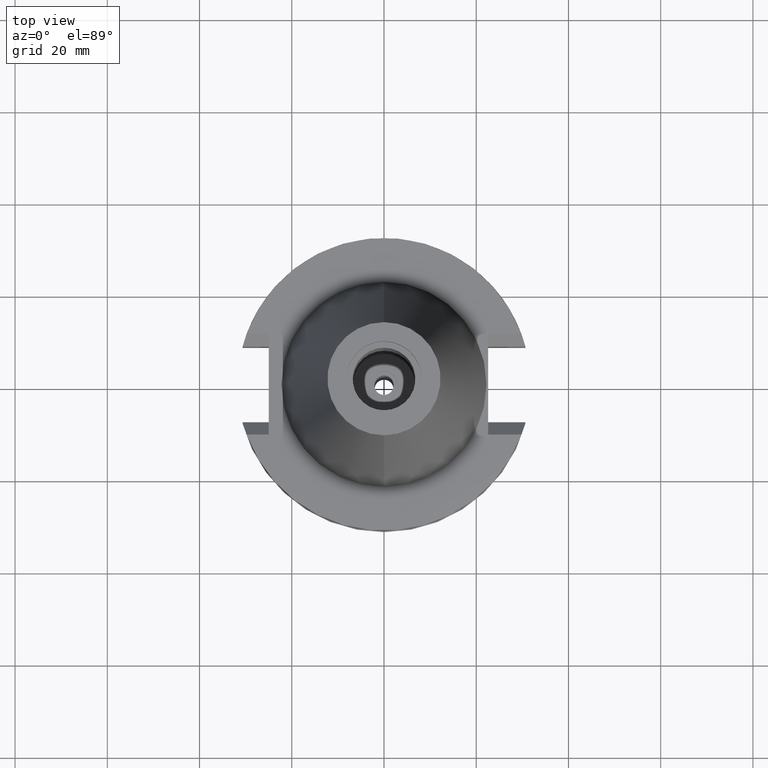
[diagram: clean part render]
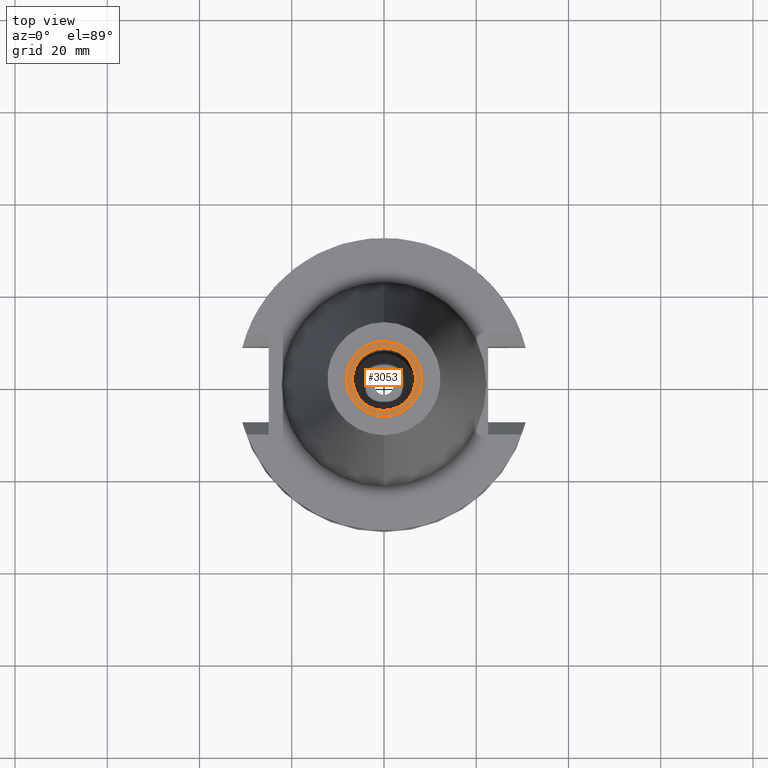
[diagram: same view with one face highlighted and labeled with its STEP entity id]
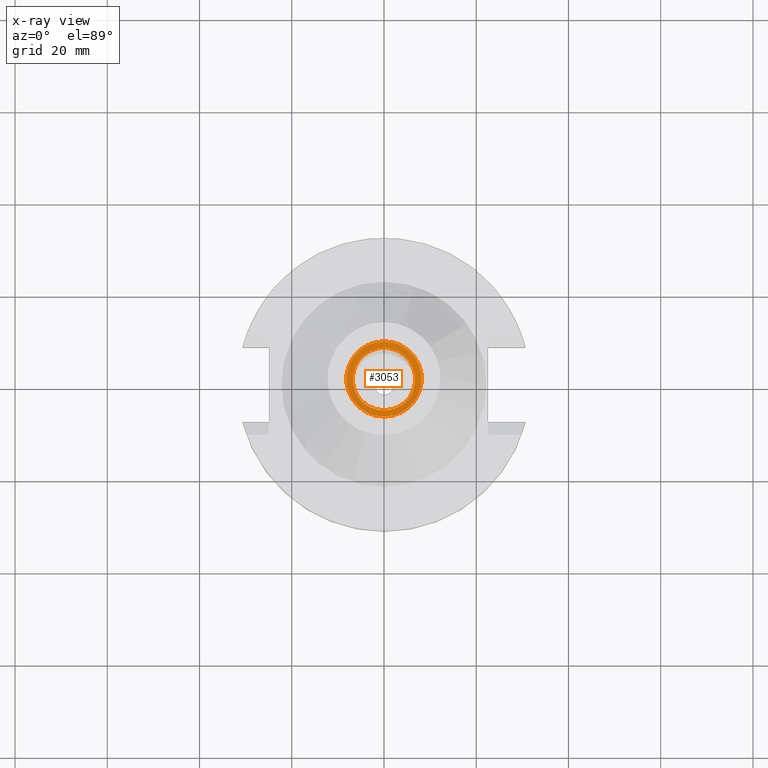
[diagram: x-ray of the same camera — body ghosted, the highlighted face saturated]
A machine part, top view. The second image highlights one B-rep face of the part: STEP entity #3053.
The next image is the same camera in x-ray: the body ghosted, the highlighted face saturated — about 0% of this face is hidden behind the body in this view.
In plain terms, the highlighted planar face has unit normal (0, 0, -1).
Its self-contained STEP definition (entity closure, byte-faithful):
#93 = CARTESIAN_POINT ( 'NONE',  ( 0.0000000000000000000, -6.799999999999999822, 63.46999999999999886 ) ) ;
#97 = VERTEX_POINT ( 'NONE', #2136 ) ;
#184 = DIRECTION ( 'NONE',  ( 0.0000000000000000000, 0.0000000000000000000, 1.000000000000000000 ) ) ;
#262 = DIRECTION ( 'NONE',  ( 0.0000000000000000000, 1.000000000000000000, 0.0000000000000000000 ) ) ;
#313 = DIRECTION ( 'NONE',  ( 0.0000000000000000000, -1.000000000000000000, 0.0000000000000000000 ) ) ;
#474 = CARTESIAN_POINT ( 'NONE',  ( 0.0000000000000000000, 2.001930122565999721E-14, 63.46999999999999886 ) ) ;
#573 = CARTESIAN_POINT ( 'NONE',  ( 0.0000000000000000000, 2.138692553861000088E-14, 63.46999999999999886 ) ) ;
#579 = CIRCLE ( 'NONE', #3151, 8.160000000000000142 ) ;
#610 = DIRECTION ( 'NONE',  ( 0.0000000000000000000, -1.000000000000000000, 0.0000000000000000000 ) ) ;
#653 = VERTEX_POINT ( 'NONE', #1462 ) ;
#657 = DIRECTION ( 'NONE',  ( 0.0000000000000000000, 1.000000000000000000, 0.0000000000000000000 ) ) ;
#776 = EDGE_CURVE ( 'NONE', #2124, #653, #579, .T. ) ;
#888 = DIRECTION ( 'NONE',  ( 0.0000000000000000000, 0.0000000000000000000, -1.000000000000000000 ) ) ;
#941 = DIRECTION ( 'NONE',  ( 0.0000000000000000000, -1.000000000000000000, 0.0000000000000000000 ) ) ;
#951 = CIRCLE ( 'NONE', #3166, 6.799999999999999822 ) ;
#1000 = AXIS2_PLACEMENT_3D ( 'NONE', #1495, #2474, #262 ) ;
#1019 = ORIENTED_EDGE ( 'NONE', *, *, #776, .F. ) ;
#1029 = VERTEX_POINT ( 'NONE', #93 ) ;
#1048 = AXIS2_PLACEMENT_3D ( 'NONE', #1608, #184, #657 ) ;
#1095 = AXIS2_PLACEMENT_3D ( 'NONE', #474, #888, #941 ) ;
#1270 = DIRECTION ( 'NONE',  ( 0.0000000000000000000, 0.0000000000000000000, 1.000000000000000000 ) ) ;
#1381 = ORIENTED_EDGE ( 'NONE', *, *, #2441, .F. ) ;
#1462 = CARTESIAN_POINT ( 'NONE',  ( 0.0000000000000000000, 8.160000000000000142, 63.46999999999999886 ) ) ;
#1495 = CARTESIAN_POINT ( 'NONE',  ( 0.0000000000000000000, 2.138692553861000088E-14, 63.46999999999999886 ) ) ;
#1521 = CARTESIAN_POINT ( 'NONE',  ( 0.0000000000000000000, 2.138692553861000088E-14, 63.46999999999999886 ) ) ;
#1530 = EDGE_CURVE ( 'NONE', #97, #1029, #3002, .T. ) ;
#1608 = CARTESIAN_POINT ( 'NONE',  ( 0.0000000000000000000, 2.138692553861000088E-14, 63.46999999999999886 ) ) ;
#1618 = PLANE ( 'NONE',  #1095 ) ;
#1640 = EDGE_LOOP ( 'NONE', ( #2504, #1019 ) ) ;
#1732 = ORIENTED_EDGE ( 'NONE', *, *, #1530, .F. ) ;
#1870 = CIRCLE ( 'NONE', #1000, 8.160000000000000142 ) ;
#2028 = EDGE_LOOP ( 'NONE', ( #1732, #1381 ) ) ;
#2124 = VERTEX_POINT ( 'NONE', #2343 ) ;
#2136 = CARTESIAN_POINT ( 'NONE',  ( 0.0000000000000000000, 6.799999999999999822, 63.46999999999999886 ) ) ;
#2320 = EDGE_CURVE ( 'NONE', #653, #2124, #1870, .T. ) ;
#2343 = CARTESIAN_POINT ( 'NONE',  ( 0.0000000000000000000, -8.160000000000000142, 63.46999999999999886 ) ) ;
#2441 = EDGE_CURVE ( 'NONE', #1029, #97, #951, .T. ) ;
#2474 = DIRECTION ( 'NONE',  ( 0.0000000000000000000, 0.0000000000000000000, -1.000000000000000000 ) ) ;
#2504 = ORIENTED_EDGE ( 'NONE', *, *, #2320, .F. ) ;
#2536 = DIRECTION ( 'NONE',  ( 0.0000000000000000000, 0.0000000000000000000, -1.000000000000000000 ) ) ;
#2633 = FACE_OUTER_BOUND ( 'NONE', #1640, .T. ) ;
#2672 = FACE_BOUND ( 'NONE', #2028, .T. ) ;
#3002 = CIRCLE ( 'NONE', #1048, 6.799999999999999822 ) ;
#3053 = ADVANCED_FACE ( 'NONE', ( #2633, #2672 ), #1618, .F. ) ;
#3151 = AXIS2_PLACEMENT_3D ( 'NONE', #573, #2536, #610 ) ;
#3166 = AXIS2_PLACEMENT_3D ( 'NONE', #1521, #1270, #313 ) ;